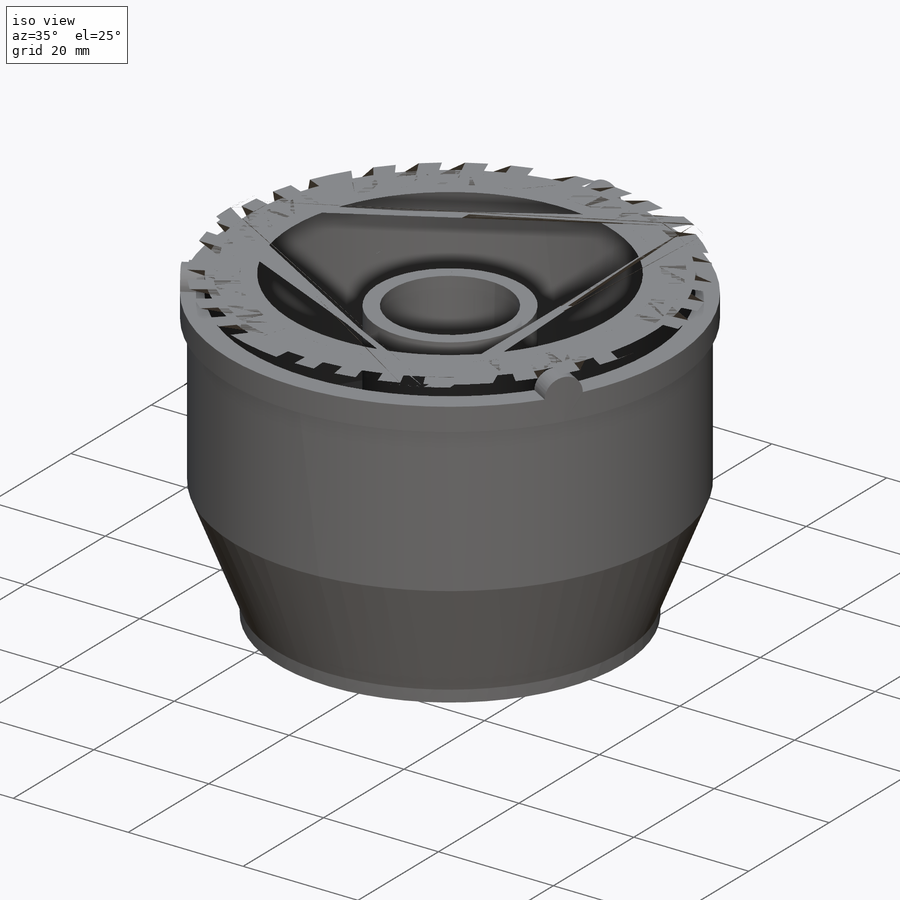
[diagram: iso view]
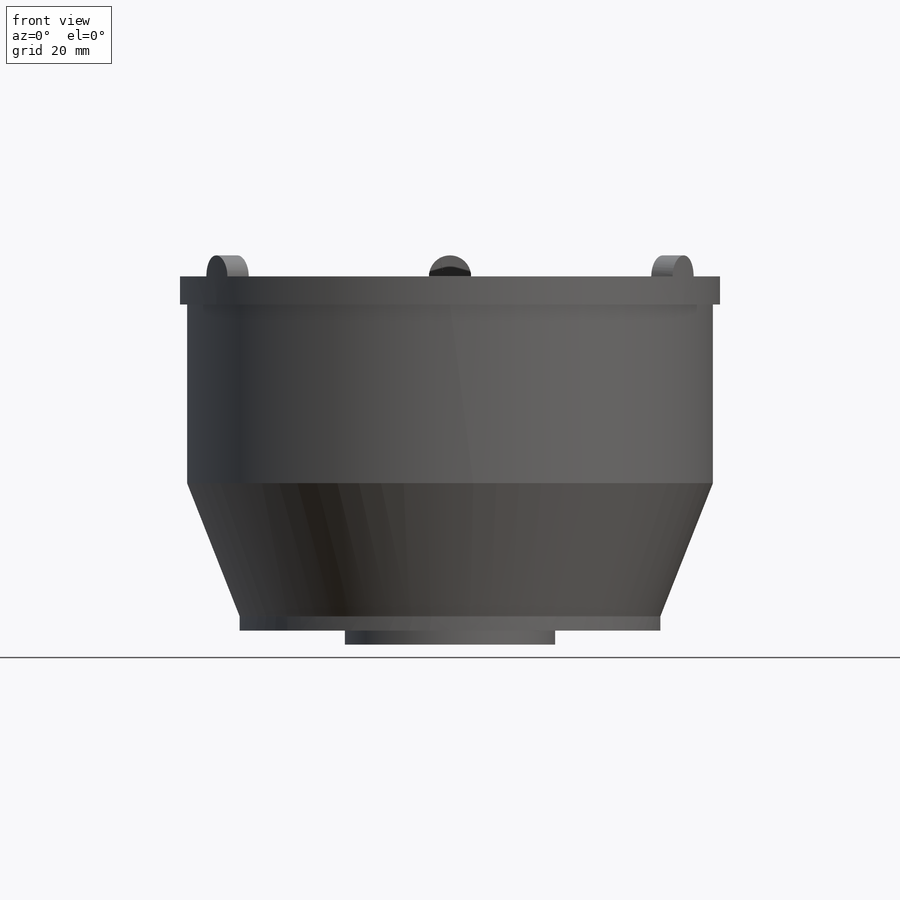
[diagram: front view]
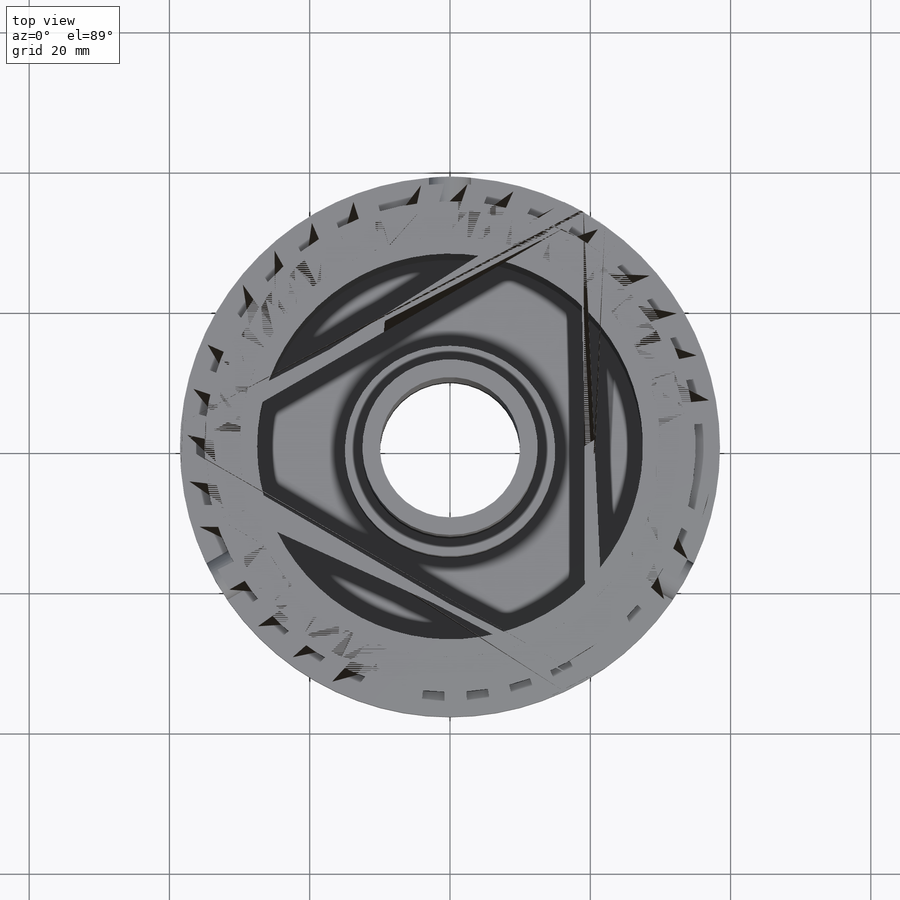
[diagram: top view]
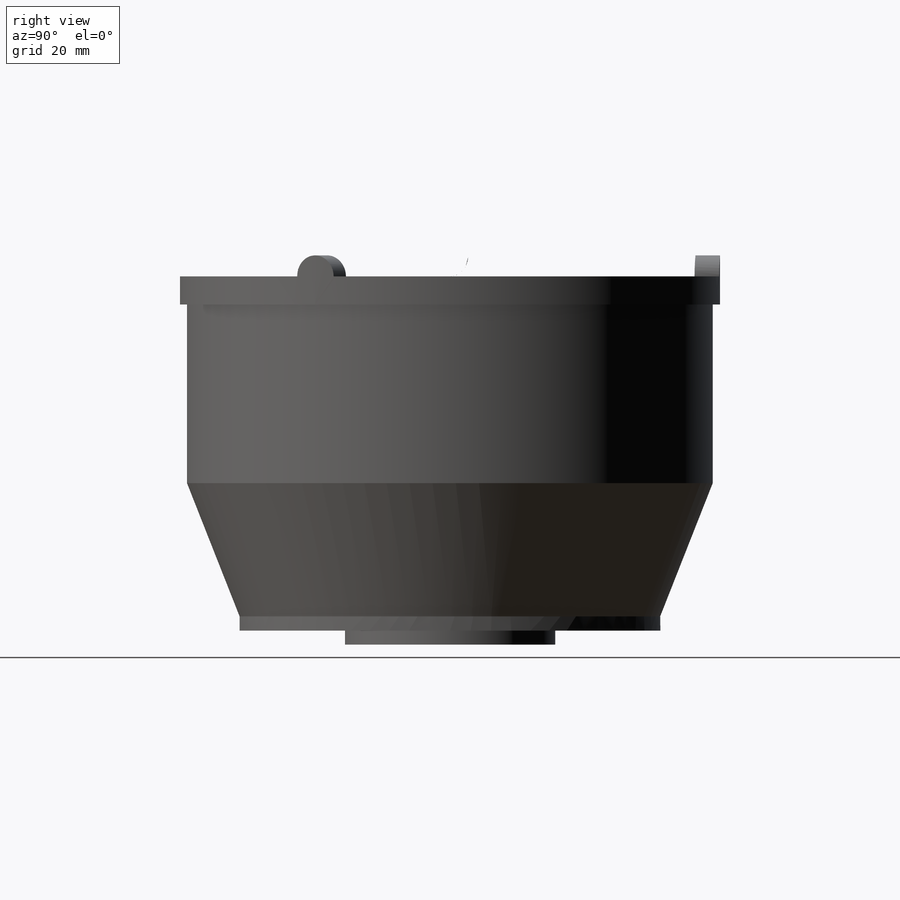
[diagram: right view]
SOLIDWORKS PART (.sldprt)
format: sldprt  version: not decoded by parser v0  size: 353,792 bytes
history: native  units: mm
features: sketch x4, plane x3, extrude x2, material x1, revolve x1, cut_extrude x1, fillet x1, mirror x1, pattern_circular x1 (+9 scaffold rows collapsed)
feature tree (24):
  scaffold x9  (default folders/planes/origin — collapsed)
  material  "Сталь"
  plane  "Спереди"
  plane  "Сверху"
  plane  "Справа"
  sketch  "Эскиз1"  dims[D1=70.0mm D2=32.0mm D3=25.0mm D4=5.0mm D5=46.0mm D6=15.0mm D8=60.0mm D9=77.0mm D10=7.0mm D7=2.5mm]
  revolve  "Повернуть1"  Angle=360deg
  sketch  "Эскиз5"  dims[D1=30.0mm]
  extrude  "Бобышка-Вытянуть1"  Depth=2mm
  sketch  "Эскиз6"  dims[D1=0.0mm]
  cut_extrude  "Вырез-Вытянуть1"  Depth=3mm
  sketch  "Эскиз7"  dims[c1.D2=~3.449287mm c2.D2=5.0deg c3.D2=3.0mm c3.D1=0.0mm]
  extrude  "Бобышка-Вытянуть2"  Depth=3mm
  fillet  "Скругление2"  Radius=3mm
  mirror  "Зеркальное отражение2"
  pattern_circular  "Круговой массив1"  Count=3 Angle=360deg
decode coverage: 10 of 11 modeling features carry decoded parameters
note: ~ marks probable driven/reference dimensions
note: suppression state not decoded; provenance and decode notes live in map.json
